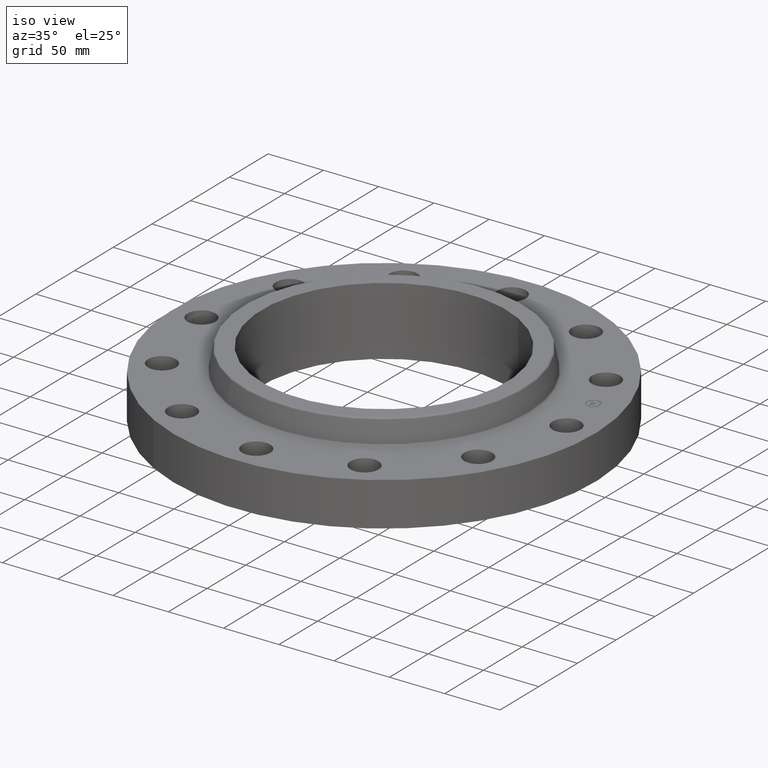
[diagram: clean part render]
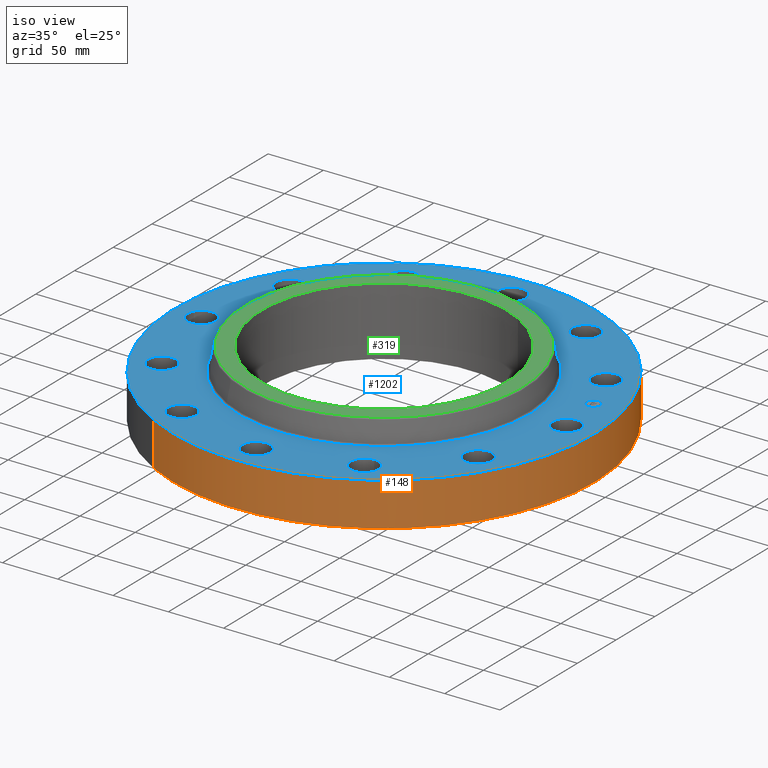
[diagram: same view with three faces highlighted in distinct colors, each labeled with its STEP entity id]
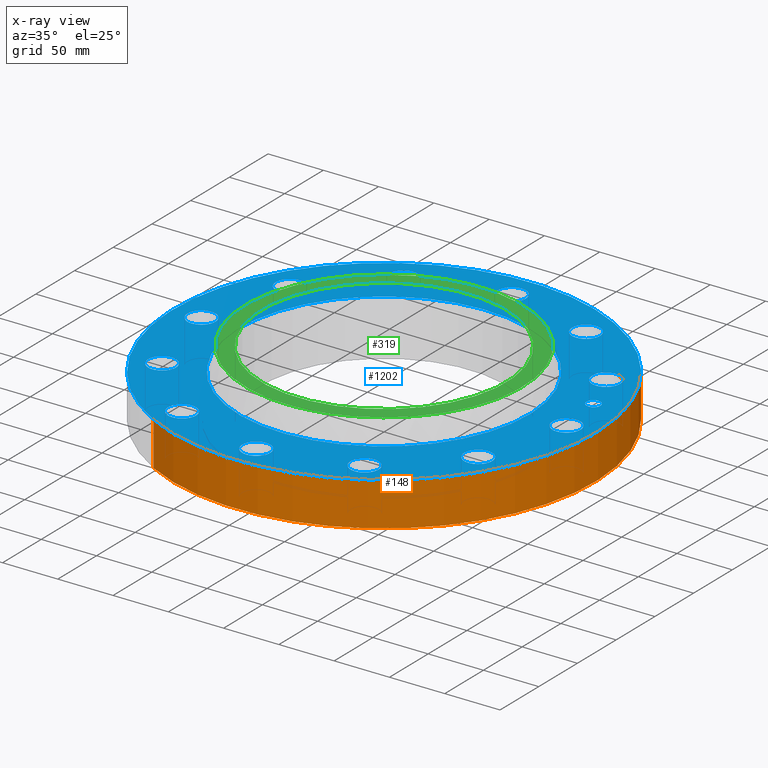
[diagram: x-ray of the same camera — body ghosted, the three highlighted faces saturated]
A machine part, iso view with three faces highlighted in distinct colors.
The next image is the same camera in x-ray (body ghosted, the three faces saturated) — at least one of them is partly hidden behind the body in this view.
Their STEP definitions:

[orange] entity #148 — the highlighted cylindrical surface (partial cylindrical patch) has radius 190.5 mm, axis along (0, 0, -1).
#95=AXIS2_PLACEMENT_3D('Cylinder Axis2P3D',#92,#93,#94) ;
#134=AXIS2_PLACEMENT_3D('Circle Axis2P3D',#132,#133,$) ;
#139=AXIS2_PLACEMENT_3D('Circle Axis2P3D',#137,#138,$) ;
#92=CARTESIAN_POINT('Axis2P3D Location',(0.,0.,1.15875)) ;
#101=CARTESIAN_POINT('Vertex',(-3.59569153955,-6.5818692142,8.39223703654E-016)) ;
#103=CARTESIAN_POINT('Vertex',(3.59569153955,6.5818692142,8.39223703654E-016)) ;
#106=CARTESIAN_POINT('Line Origine',(-3.59569153955,-6.5818692142,0.780000000003)) ;
#110=CARTESIAN_POINT('Vertex',(-3.59569153955,-6.5818692142,1.56000000001)) ;
#117=CARTESIAN_POINT('Vertex',(3.59569153955,6.5818692142,1.56000000001)) ;
#120=CARTESIAN_POINT('Line Origine',(3.59569153955,6.5818692142,0.780000000003)) ;
#132=CARTESIAN_POINT('Axis2P3D Location',(0.,0.,8.39223703654E-016)) ;
#137=CARTESIAN_POINT('Axis2P3D Location',(0.,0.,1.56000000001)) ;
#93=DIRECTION('Axis2P3D Direction',(0.,0.,-0.0393700787402)) ;
#94=DIRECTION('Axis2P3D XDirection',(0.0188750212049,0.0345504945626,0.)) ;
#107=DIRECTION('Vector Direction',(0.,0.,-0.0393700787402)) ;
#121=DIRECTION('Vector Direction',(0.,0.,-0.0393700787402)) ;
#133=DIRECTION('Axis2P3D Direction',(0.,0.,-0.0393700787402)) ;
#138=DIRECTION('Axis2P3D Direction',(0.,0.,-0.0393700787402)) ;
#108=VECTOR('Line Direction',#107,0.0393700787402) ;
#122=VECTOR('Line Direction',#121,0.0393700787402) ;
#143=ORIENTED_EDGE('',*,*,#136,.F.) ;
#144=ORIENTED_EDGE('',*,*,#124,.T.) ;
#145=ORIENTED_EDGE('',*,*,#141,.T.) ;
#146=ORIENTED_EDGE('',*,*,#112,.F.) ;
#148=ADVANCED_FACE('PartBody',(#147),#96,.T.) ;
#135=CIRCLE('generated circle',#134,7.50000000003) ;
#140=CIRCLE('generated circle',#139,7.50000000003) ;
#96=CYLINDRICAL_SURFACE('generated cylinder',#95,7.50000000003) ;
#112=EDGE_CURVE('',#102,#111,#109,.F.) ;
#124=EDGE_CURVE('',#104,#118,#123,.F.) ;
#136=EDGE_CURVE('',#104,#102,#135,.T.) ;
#141=EDGE_CURVE('',#118,#111,#140,.T.) ;
#142=EDGE_LOOP('',(#143,#144,#145,#146)) ;
#147=FACE_OUTER_BOUND('',#142,.T.) ;
#109=LINE('Line',#106,#108) ;
#123=LINE('Line',#120,#122) ;
#102=VERTEX_POINT('',#101) ;
#104=VERTEX_POINT('',#103) ;
#111=VERTEX_POINT('',#110) ;
#118=VERTEX_POINT('',#117) ;

[blue] entity #1202 — the highlighted planar face has unit normal (0, 0, -1).
#65=AXIS2_PLACEMENT_3D('Circle Axis2P3D',#63,#64,$) ;
#82=AXIS2_PLACEMENT_3D('Circle Axis2P3D',#80,#81,$) ;
#115=AXIS2_PLACEMENT_3D('Circle Axis2P3D',#113,#114,$) ;
#139=AXIS2_PLACEMENT_3D('Circle Axis2P3D',#137,#138,$) ;
#156=AXIS2_PLACEMENT_3D('Circle Axis2P3D',#154,#155,$) ;
#191=AXIS2_PLACEMENT_3D('Circle Axis2P3D',#189,#190,$) ;
#671=AXIS2_PLACEMENT_3D('Circle Axis2P3D',#669,#670,$) ;
#683=AXIS2_PLACEMENT_3D('Circle Axis2P3D',#681,#682,$) ;
#714=AXIS2_PLACEMENT_3D('Circle Axis2P3D',#712,#713,$) ;
#726=AXIS2_PLACEMENT_3D('Circle Axis2P3D',#724,#725,$) ;
#757=AXIS2_PLACEMENT_3D('Circle Axis2P3D',#755,#756,$) ;
#769=AXIS2_PLACEMENT_3D('Circle Axis2P3D',#767,#768,$) ;
#800=AXIS2_PLACEMENT_3D('Circle Axis2P3D',#798,#799,$) ;
#812=AXIS2_PLACEMENT_3D('Circle Axis2P3D',#810,#811,$) ;
#843=AXIS2_PLACEMENT_3D('Circle Axis2P3D',#841,#842,$) ;
#855=AXIS2_PLACEMENT_3D('Circle Axis2P3D',#853,#854,$) ;
#886=AXIS2_PLACEMENT_3D('Circle Axis2P3D',#884,#885,$) ;
#898=AXIS2_PLACEMENT_3D('Circle Axis2P3D',#896,#897,$) ;
#929=AXIS2_PLACEMENT_3D('Circle Axis2P3D',#927,#928,$) ;
#941=AXIS2_PLACEMENT_3D('Circle Axis2P3D',#939,#940,$) ;
#972=AXIS2_PLACEMENT_3D('Circle Axis2P3D',#970,#971,$) ;
#984=AXIS2_PLACEMENT_3D('Circle Axis2P3D',#982,#983,$) ;
#1015=AXIS2_PLACEMENT_3D('Circle Axis2P3D',#1013,#1014,$) ;
#1027=AXIS2_PLACEMENT_3D('Circle Axis2P3D',#1025,#1026,$) ;
#1058=AXIS2_PLACEMENT_3D('Circle Axis2P3D',#1056,#1057,$) ;
#1070=AXIS2_PLACEMENT_3D('Circle Axis2P3D',#1068,#1069,$) ;
#1101=AXIS2_PLACEMENT_3D('Circle Axis2P3D',#1099,#1100,$) ;
#1113=AXIS2_PLACEMENT_3D('Circle Axis2P3D',#1111,#1112,$) ;
#1126=AXIS2_PLACEMENT_3D('Plane Axis2P3D',#1123,#1124,#1125) ;
#1186=AXIS2_PLACEMENT_3D('Circle Axis2P3D',#1184,#1185,$) ;
#1195=AXIS2_PLACEMENT_3D('Circle Axis2P3D',#1193,#1194,$) ;
#46=CARTESIAN_POINT('Vertex',(6.06120871908,0.239712769303,1.56000000001)) ;
#60=CARTESIAN_POINT('Vertex',(6.93879128097,-0.239712769303,1.56000000001)) ;
#63=CARTESIAN_POINT('Axis2P3D Location',(6.50000000003,0.,1.56000000001)) ;
#80=CARTESIAN_POINT('Axis2P3D Location',(6.50000000003,0.,1.56000000001)) ;
#110=CARTESIAN_POINT('Vertex',(-3.59569153955,-6.5818692142,1.56000000001)) ;
#113=CARTESIAN_POINT('Axis2P3D Location',(0.,0.,1.56000000001)) ;
#117=CARTESIAN_POINT('Vertex',(3.59569153955,6.5818692142,1.56000000001)) ;
#137=CARTESIAN_POINT('Axis2P3D Location',(0.,0.,1.56000000001)) ;
#154=CARTESIAN_POINT('Axis2P3D Location',(0.,0.,1.56000000001)) ;
#158=CARTESIAN_POINT('Vertex',(2.48119303291,4.54179338195,1.56000000001)) ;
#160=CARTESIAN_POINT('Vertex',(-2.48119303291,-4.54179338195,1.56000000001)) ;
#189=CARTESIAN_POINT('Axis2P3D Location',(0.,0.,1.56000000001)) ;
#659=CARTESIAN_POINT('Vertex',(-5.36901711301,2.82300701171,1.56000000001)) ;
#666=CARTESIAN_POINT('Vertex',(-5.88931313623,3.67699298831,1.56000000001)) ;
#669=CARTESIAN_POINT('Axis2P3D Location',(-5.62916512462,3.25000000001,1.56000000001)) ;
#681=CARTESIAN_POINT('Axis2P3D Location',(-5.62916512462,3.25000000001,1.56000000001)) ;
#702=CARTESIAN_POINT('Vertex',(3.23820170737,-5.12930434371,1.56000000001)) ;
#709=CARTESIAN_POINT('Vertex',(3.26179829266,-6.12902590553,1.56000000001)) ;
#712=CARTESIAN_POINT('Axis2P3D Location',(3.25000000001,-5.62916512462,1.56000000001)) ;
#724=CARTESIAN_POINT('Axis2P3D Location',(3.25000000001,-5.62916512462,1.56000000001)) ;
#745=CARTESIAN_POINT('Vertex',(-3.23820170737,5.12930434371,1.56000000001)) ;
#752=CARTESIAN_POINT('Vertex',(-3.26179829266,6.12902590553,1.56000000001)) ;
#755=CARTESIAN_POINT('Axis2P3D Location',(-3.25000000001,5.62916512462,1.56000000001)) ;
#767=CARTESIAN_POINT('Axis2P3D Location',(-3.25000000001,5.62916512462,1.56000000001)) ;
#788=CARTESIAN_POINT('Vertex',(0.239712769303,-6.06120871908,1.56000000001)) ;
#795=CARTESIAN_POINT('Vertex',(-0.239712769303,-6.93879128097,1.56000000001)) ;
#798=CARTESIAN_POINT('Axis2P3D Location',(-7.2095472848E-016,-6.50000000003,1.56000000001)) ;
#810=CARTESIAN_POINT('Axis2P3D Location',(-7.2095472848E-016,-6.50000000003,1.56000000001)) ;
#831=CARTESIAN_POINT('Vertex',(-0.239712769303,6.06120871908,1.56000000001)) ;
#838=CARTESIAN_POINT('Vertex',(0.239712769303,6.93879128097,1.56000000001)) ;
#841=CARTESIAN_POINT('Axis2P3D Location',(-1.19403062917E-015,6.50000000003,1.56000000001)) ;
#853=CARTESIAN_POINT('Axis2P3D Location',(-1.19403062917E-015,6.50000000003,1.56000000001)) ;
#874=CARTESIAN_POINT('Vertex',(-2.82300701171,-5.36901711301,1.56000000001)) ;
#881=CARTESIAN_POINT('Vertex',(-3.67699298831,-5.88931313623,1.56000000001)) ;
#884=CARTESIAN_POINT('Axis2P3D Location',(-3.25000000001,-5.62916512462,1.56000000001)) ;
#896=CARTESIAN_POINT('Axis2P3D Location',(-3.25000000001,-5.62916512462,1.56000000001)) ;
#917=CARTESIAN_POINT('Vertex',(2.82300701171,5.36901711301,1.56000000001)) ;
#924=CARTESIAN_POINT('Vertex',(3.67699298831,5.88931313623,1.56000000001)) ;
#927=CARTESIAN_POINT('Axis2P3D Location',(3.25000000001,5.62916512462,1.56000000001)) ;
#939=CARTESIAN_POINT('Axis2P3D Location',(3.25000000001,5.62916512462,1.56000000001)) ;
#960=CARTESIAN_POINT('Vertex',(-5.12930434371,-3.23820170737,1.56000000001)) ;
#967=CARTESIAN_POINT('Vertex',(-6.12902590553,-3.26179829266,1.56000000001)) ;
#970=CARTESIAN_POINT('Axis2P3D Location',(-5.62916512462,-3.25000000001,1.56000000001)) ;
#982=CARTESIAN_POINT('Axis2P3D Location',(-5.62916512462,-3.25000000001,1.56000000001)) ;
#1003=CARTESIAN_POINT('Vertex',(5.12930434371,3.23820170737,1.56000000001)) ;
#1010=CARTESIAN_POINT('Vertex',(6.12902590553,3.26179829266,1.56000000001)) ;
#1013=CARTESIAN_POINT('Axis2P3D Location',(5.62916512462,3.25000000001,1.56000000001)) ;
#1025=CARTESIAN_POINT('Axis2P3D Location',(5.62916512462,3.25000000001,1.56000000001)) ;
#1046=CARTESIAN_POINT('Vertex',(-6.06120871908,-0.239712769303,1.56000000001)) ;
#1053=CARTESIAN_POINT('Vertex',(-6.93879128097,0.239712769303,1.56000000001)) ;
#1056=CARTESIAN_POINT('Axis2P3D Location',(-6.50000000003,-7.96020419449E-016,1.56000000001)) ;
#1068=CARTESIAN_POINT('Axis2P3D Location',(-6.50000000003,-7.96020419449E-016,1.56000000001)) ;
#1089=CARTESIAN_POINT('Vertex',(5.36901711301,-2.82300701171,1.56000000001)) ;
#1096=CARTESIAN_POINT('Vertex',(5.88931313623,-3.67699298831,1.56000000001)) ;
#1099=CARTESIAN_POINT('Axis2P3D Location',(5.62916512462,-3.25000000001,1.56000000001)) ;
#1111=CARTESIAN_POINT('Axis2P3D Location',(5.62916512462,-3.25000000001,1.56000000001)) ;
#1123=CARTESIAN_POINT('Axis2P3D Location',(0.,7.50000000003,1.56000000001)) ;
#1184=CARTESIAN_POINT('Axis2P3D Location',(6.2785178709,1.68232379317,1.56000000001)) ;
#1188=CARTESIAN_POINT('Vertex',(6.21446015724,1.92139043518,1.56000000001)) ;
#1190=CARTESIAN_POINT('Vertex',(6.34257558457,1.44325715117,1.56000000001)) ;
#1193=CARTESIAN_POINT('Axis2P3D Location',(6.2785178709,1.68232379317,1.56000000001)) ;
#64=DIRECTION('Axis2P3D Direction',(0.,-0.,-0.0393700787402)) ;
#81=DIRECTION('Axis2P3D Direction',(0.,-0.,-0.0393700787402)) ;
#114=DIRECTION('Axis2P3D Direction',(0.,0.,-0.0393700787402)) ;
#138=DIRECTION('Axis2P3D Direction',(0.,0.,-0.0393700787402)) ;
#155=DIRECTION('Axis2P3D Direction',(0.,0.,-0.0393700787402)) ;
#190=DIRECTION('Axis2P3D Direction',(0.,0.,-0.0393700787402)) ;
#670=DIRECTION('Axis2P3D Direction',(0.,0.,-0.0393700787402)) ;
#682=DIRECTION('Axis2P3D Direction',(0.,0.,-0.0393700787402)) ;
#713=DIRECTION('Axis2P3D Direction',(0.,-0.,-0.0393700787402)) ;
#725=DIRECTION('Axis2P3D Direction',(0.,-0.,-0.0393700787402)) ;
#756=DIRECTION('Axis2P3D Direction',(0.,0.,-0.0393700787402)) ;
#768=DIRECTION('Axis2P3D Direction',(0.,0.,-0.0393700787402)) ;
#799=DIRECTION('Axis2P3D Direction',(0.,-0.,-0.0393700787402)) ;
#811=DIRECTION('Axis2P3D Direction',(0.,-0.,-0.0393700787402)) ;
#842=DIRECTION('Axis2P3D Direction',(0.,0.,-0.0393700787402)) ;
#854=DIRECTION('Axis2P3D Direction',(0.,0.,-0.0393700787402)) ;
#885=DIRECTION('Axis2P3D Direction',(-0.,0.,-0.0393700787402)) ;
#897=DIRECTION('Axis2P3D Direction',(-0.,0.,-0.0393700787402)) ;
#928=DIRECTION('Axis2P3D Direction',(0.,0.,-0.0393700787402)) ;
#940=DIRECTION('Axis2P3D Direction',(0.,0.,-0.0393700787402)) ;
#971=DIRECTION('Axis2P3D Direction',(-0.,0.,-0.0393700787402)) ;
#983=DIRECTION('Axis2P3D Direction',(-0.,0.,-0.0393700787402)) ;
#1014=DIRECTION('Axis2P3D Direction',(0.,0.,-0.0393700787402)) ;
#1026=DIRECTION('Axis2P3D Direction',(0.,0.,-0.0393700787402)) ;
#1057=DIRECTION('Axis2P3D Direction',(-0.,0.,-0.0393700787402)) ;
#1069=DIRECTION('Axis2P3D Direction',(-0.,0.,-0.0393700787402)) ;
#1100=DIRECTION('Axis2P3D Direction',(0.,-0.,-0.0393700787402)) ;
#1112=DIRECTION('Axis2P3D Direction',(0.,-0.,-0.0393700787402)) ;
#1124=DIRECTION('Axis2P3D Direction',(0.,0.,-0.0393700787402)) ;
#1125=DIRECTION('Axis2P3D XDirection',(0.0393700787402,0.,0.)) ;
#1185=DIRECTION('Axis2P3D Direction',(0.,0.,-0.0393700787402)) ;
#1194=DIRECTION('Axis2P3D Direction',(0.,0.,-0.0393700787402)) ;
#1129=ORIENTED_EDGE('',*,*,#141,.F.) ;
#1130=ORIENTED_EDGE('',*,*,#119,.F.) ;
#1133=ORIENTED_EDGE('',*,*,#67,.T.) ;
#1134=ORIENTED_EDGE('',*,*,#84,.T.) ;
#1137=ORIENTED_EDGE('',*,*,#193,.T.) ;
#1138=ORIENTED_EDGE('',*,*,#162,.T.) ;
#1141=ORIENTED_EDGE('',*,*,#1115,.T.) ;
#1142=ORIENTED_EDGE('',*,*,#1103,.T.) ;
#1145=ORIENTED_EDGE('',*,*,#728,.T.) ;
#1146=ORIENTED_EDGE('',*,*,#716,.T.) ;
#1149=ORIENTED_EDGE('',*,*,#814,.T.) ;
#1150=ORIENTED_EDGE('',*,*,#802,.T.) ;
#1153=ORIENTED_EDGE('',*,*,#900,.T.) ;
#1154=ORIENTED_EDGE('',*,*,#888,.T.) ;
#1157=ORIENTED_EDGE('',*,*,#986,.T.) ;
#1158=ORIENTED_EDGE('',*,*,#974,.T.) ;
#1161=ORIENTED_EDGE('',*,*,#1072,.T.) ;
#1162=ORIENTED_EDGE('',*,*,#1060,.T.) ;
#1165=ORIENTED_EDGE('',*,*,#685,.T.) ;
#1166=ORIENTED_EDGE('',*,*,#673,.T.) ;
#1169=ORIENTED_EDGE('',*,*,#771,.T.) ;
#1170=ORIENTED_EDGE('',*,*,#759,.T.) ;
#1173=ORIENTED_EDGE('',*,*,#857,.T.) ;
#1174=ORIENTED_EDGE('',*,*,#845,.T.) ;
#1177=ORIENTED_EDGE('',*,*,#943,.T.) ;
#1178=ORIENTED_EDGE('',*,*,#931,.T.) ;
#1181=ORIENTED_EDGE('',*,*,#1029,.T.) ;
#1182=ORIENTED_EDGE('',*,*,#1017,.T.) ;
#1199=ORIENTED_EDGE('',*,*,#1192,.T.) ;
#1200=ORIENTED_EDGE('',*,*,#1197,.T.) ;
#1135=FACE_BOUND('',#1132,.T.) ;
#1139=FACE_BOUND('',#1136,.T.) ;
#1143=FACE_BOUND('',#1140,.T.) ;
#1147=FACE_BOUND('',#1144,.T.) ;
#1151=FACE_BOUND('',#1148,.T.) ;
#1155=FACE_BOUND('',#1152,.T.) ;
#1159=FACE_BOUND('',#1156,.T.) ;
#1163=FACE_BOUND('',#1160,.T.) ;
#1167=FACE_BOUND('',#1164,.T.) ;
#1171=FACE_BOUND('',#1168,.T.) ;
#1175=FACE_BOUND('',#1172,.T.) ;
#1179=FACE_BOUND('',#1176,.T.) ;
#1183=FACE_BOUND('',#1180,.T.) ;
#1201=FACE_BOUND('',#1198,.T.) ;
#1202=ADVANCED_FACE('PartBody',(#1131,#1135,#1139,#1143,#1147,#1151,#1155,#1159,#1163,#1167,#1171,#1175,#1179,#1183,#1201),#1127,.F.) ;
#66=CIRCLE('generated circle',#65,0.500000000002) ;
#83=CIRCLE('generated circle',#82,0.500000000002) ;
#116=CIRCLE('generated circle',#115,7.50000000003) ;
#140=CIRCLE('generated circle',#139,7.50000000003) ;
#157=CIRCLE('generated circle',#156,5.17534597789) ;
#192=CIRCLE('generated circle',#191,5.17534597789) ;
#672=CIRCLE('generated circle',#671,0.500000000002) ;
#684=CIRCLE('generated circle',#683,0.500000000002) ;
#715=CIRCLE('generated circle',#714,0.500000000002) ;
#727=CIRCLE('generated circle',#726,0.500000000002) ;
#758=CIRCLE('generated circle',#757,0.500000000002) ;
#770=CIRCLE('generated circle',#769,0.500000000002) ;
#801=CIRCLE('generated circle',#800,0.500000000002) ;
#813=CIRCLE('generated circle',#812,0.500000000002) ;
#844=CIRCLE('generated circle',#843,0.500000000002) ;
#856=CIRCLE('generated circle',#855,0.500000000002) ;
#887=CIRCLE('generated circle',#886,0.500000000002) ;
#899=CIRCLE('generated circle',#898,0.500000000002) ;
#930=CIRCLE('generated circle',#929,0.500000000002) ;
#942=CIRCLE('generated circle',#941,0.500000000002) ;
#973=CIRCLE('generated circle',#972,0.500000000002) ;
#985=CIRCLE('generated circle',#984,0.500000000002) ;
#1016=CIRCLE('generated circle',#1015,0.500000000002) ;
#1028=CIRCLE('generated circle',#1027,0.500000000002) ;
#1059=CIRCLE('generated circle',#1058,0.500000000002) ;
#1071=CIRCLE('generated circle',#1070,0.500000000002) ;
#1102=CIRCLE('generated circle',#1101,0.500000000002) ;
#1114=CIRCLE('generated circle',#1113,0.500000000002) ;
#1187=CIRCLE('generated circle',#1186,0.247500000001) ;
#1196=CIRCLE('generated circle',#1195,0.247500000001) ;
#67=EDGE_CURVE('',#47,#61,#66,.T.) ;
#84=EDGE_CURVE('',#61,#47,#83,.T.) ;
#119=EDGE_CURVE('',#111,#118,#116,.T.) ;
#141=EDGE_CURVE('',#118,#111,#140,.T.) ;
#162=EDGE_CURVE('',#159,#161,#157,.T.) ;
#193=EDGE_CURVE('',#161,#159,#192,.T.) ;
#673=EDGE_CURVE('',#660,#667,#672,.T.) ;
#685=EDGE_CURVE('',#667,#660,#684,.T.) ;
#716=EDGE_CURVE('',#703,#710,#715,.T.) ;
#728=EDGE_CURVE('',#710,#703,#727,.T.) ;
#759=EDGE_CURVE('',#746,#753,#758,.T.) ;
#771=EDGE_CURVE('',#753,#746,#770,.T.) ;
#802=EDGE_CURVE('',#789,#796,#801,.T.) ;
#814=EDGE_CURVE('',#796,#789,#813,.T.) ;
#845=EDGE_CURVE('',#832,#839,#844,.T.) ;
#857=EDGE_CURVE('',#839,#832,#856,.T.) ;
#888=EDGE_CURVE('',#875,#882,#887,.T.) ;
#900=EDGE_CURVE('',#882,#875,#899,.T.) ;
#931=EDGE_CURVE('',#918,#925,#930,.T.) ;
#943=EDGE_CURVE('',#925,#918,#942,.T.) ;
#974=EDGE_CURVE('',#961,#968,#973,.T.) ;
#986=EDGE_CURVE('',#968,#961,#985,.T.) ;
#1017=EDGE_CURVE('',#1004,#1011,#1016,.T.) ;
#1029=EDGE_CURVE('',#1011,#1004,#1028,.T.) ;
#1060=EDGE_CURVE('',#1047,#1054,#1059,.T.) ;
#1072=EDGE_CURVE('',#1054,#1047,#1071,.T.) ;
#1103=EDGE_CURVE('',#1090,#1097,#1102,.T.) ;
#1115=EDGE_CURVE('',#1097,#1090,#1114,.T.) ;
#1192=EDGE_CURVE('',#1189,#1191,#1187,.T.) ;
#1197=EDGE_CURVE('',#1191,#1189,#1196,.T.) ;
#1128=EDGE_LOOP('',(#1129,#1130)) ;
#1132=EDGE_LOOP('',(#1133,#1134)) ;
#1136=EDGE_LOOP('',(#1137,#1138)) ;
#1140=EDGE_LOOP('',(#1141,#1142)) ;
#1144=EDGE_LOOP('',(#1145,#1146)) ;
#1148=EDGE_LOOP('',(#1149,#1150)) ;
#1152=EDGE_LOOP('',(#1153,#1154)) ;
#1156=EDGE_LOOP('',(#1157,#1158)) ;
#1160=EDGE_LOOP('',(#1161,#1162)) ;
#1164=EDGE_LOOP('',(#1165,#1166)) ;
#1168=EDGE_LOOP('',(#1169,#1170)) ;
#1172=EDGE_LOOP('',(#1173,#1174)) ;
#1176=EDGE_LOOP('',(#1177,#1178)) ;
#1180=EDGE_LOOP('',(#1181,#1182)) ;
#1198=EDGE_LOOP('',(#1199,#1200)) ;
#1131=FACE_OUTER_BOUND('',#1128,.T.) ;
#1127=PLANE('',#1126) ;
#47=VERTEX_POINT('',#46) ;
#61=VERTEX_POINT('',#60) ;
#111=VERTEX_POINT('',#110) ;
#118=VERTEX_POINT('',#117) ;
#159=VERTEX_POINT('',#158) ;
#161=VERTEX_POINT('',#160) ;
#660=VERTEX_POINT('',#659) ;
#667=VERTEX_POINT('',#666) ;
#703=VERTEX_POINT('',#702) ;
#710=VERTEX_POINT('',#709) ;
#746=VERTEX_POINT('',#745) ;
#753=VERTEX_POINT('',#752) ;
#789=VERTEX_POINT('',#788) ;
#796=VERTEX_POINT('',#795) ;
#832=VERTEX_POINT('',#831) ;
#839=VERTEX_POINT('',#838) ;
#875=VERTEX_POINT('',#874) ;
#882=VERTEX_POINT('',#881) ;
#918=VERTEX_POINT('',#917) ;
#925=VERTEX_POINT('',#924) ;
#961=VERTEX_POINT('',#960) ;
#968=VERTEX_POINT('',#967) ;
#1004=VERTEX_POINT('',#1003) ;
#1011=VERTEX_POINT('',#1010) ;
#1047=VERTEX_POINT('',#1046) ;
#1054=VERTEX_POINT('',#1053) ;
#1090=VERTEX_POINT('',#1089) ;
#1097=VERTEX_POINT('',#1096) ;
#1189=VERTEX_POINT('',#1188) ;
#1191=VERTEX_POINT('',#1190) ;

[green] entity #319 — the highlighted planar face has unit normal (0, 0, -1).
#263=AXIS2_PLACEMENT_3D('Circle Axis2P3D',#261,#262,$) ;
#282=AXIS2_PLACEMENT_3D('Circle Axis2P3D',#280,#281,$) ;
#295=AXIS2_PLACEMENT_3D('Plane Axis2P3D',#292,#293,#294) ;
#303=AXIS2_PLACEMENT_3D('Circle Axis2P3D',#301,#302,$) ;
#312=AXIS2_PLACEMENT_3D('Circle Axis2P3D',#310,#311,$) ;
#258=CARTESIAN_POINT('Vertex',(2.36359949849,4.32653986103,2.38000000001)) ;
#261=CARTESIAN_POINT('Axis2P3D Location',(0.,0.,2.38000000001)) ;
#265=CARTESIAN_POINT('Vertex',(-2.36359949849,-4.32653986103,2.38000000001)) ;
#280=CARTESIAN_POINT('Axis2P3D Location',(0.,0.,2.38000000001)) ;
#292=CARTESIAN_POINT('Axis2P3D Location',(0.,4.93006589797,2.38000000001)) ;
#301=CARTESIAN_POINT('Axis2P3D Location',(0.,0.,2.38000000001)) ;
#305=CARTESIAN_POINT('Vertex',(-2.09029534832,-3.82625996986,2.38000000001)) ;
#307=CARTESIAN_POINT('Vertex',(2.09029534832,3.82625996986,2.38000000001)) ;
#310=CARTESIAN_POINT('Axis2P3D Location',(0.,0.,2.38000000001)) ;
#262=DIRECTION('Axis2P3D Direction',(0.,0.,-0.0393700787402)) ;
#281=DIRECTION('Axis2P3D Direction',(0.,0.,-0.0393700787402)) ;
#293=DIRECTION('Axis2P3D Direction',(0.,0.,-0.0393700787402)) ;
#294=DIRECTION('Axis2P3D XDirection',(0.0393700787402,0.,0.)) ;
#302=DIRECTION('Axis2P3D Direction',(0.,0.,-0.0393700787402)) ;
#311=DIRECTION('Axis2P3D Direction',(0.,0.,-0.0393700787402)) ;
#298=ORIENTED_EDGE('',*,*,#267,.F.) ;
#299=ORIENTED_EDGE('',*,*,#284,.F.) ;
#316=ORIENTED_EDGE('',*,*,#309,.T.) ;
#317=ORIENTED_EDGE('',*,*,#314,.T.) ;
#318=FACE_BOUND('',#315,.T.) ;
#319=ADVANCED_FACE('PartBody',(#300,#318),#296,.F.) ;
#264=CIRCLE('generated circle',#263,4.93006589797) ;
#283=CIRCLE('generated circle',#282,4.93006589797) ;
#304=CIRCLE('generated circle',#303,4.36000000002) ;
#313=CIRCLE('generated circle',#312,4.36000000002) ;
#267=EDGE_CURVE('',#259,#266,#264,.T.) ;
#284=EDGE_CURVE('',#266,#259,#283,.T.) ;
#309=EDGE_CURVE('',#306,#308,#304,.T.) ;
#314=EDGE_CURVE('',#308,#306,#313,.T.) ;
#297=EDGE_LOOP('',(#298,#299)) ;
#315=EDGE_LOOP('',(#316,#317)) ;
#300=FACE_OUTER_BOUND('',#297,.T.) ;
#296=PLANE('',#295) ;
#259=VERTEX_POINT('',#258) ;
#266=VERTEX_POINT('',#265) ;
#306=VERTEX_POINT('',#305) ;
#308=VERTEX_POINT('',#307) ;